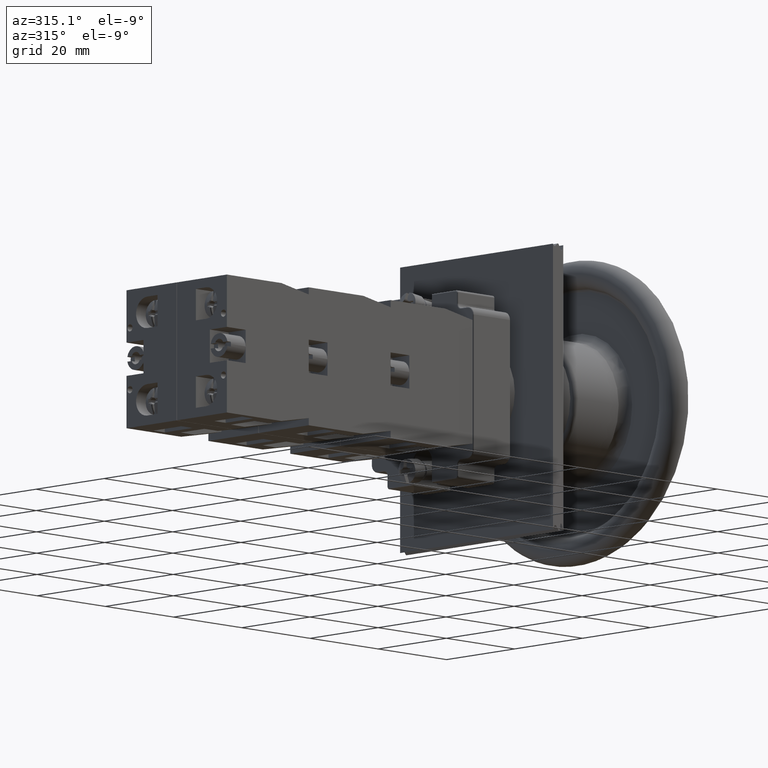
[diagram: clean part render]
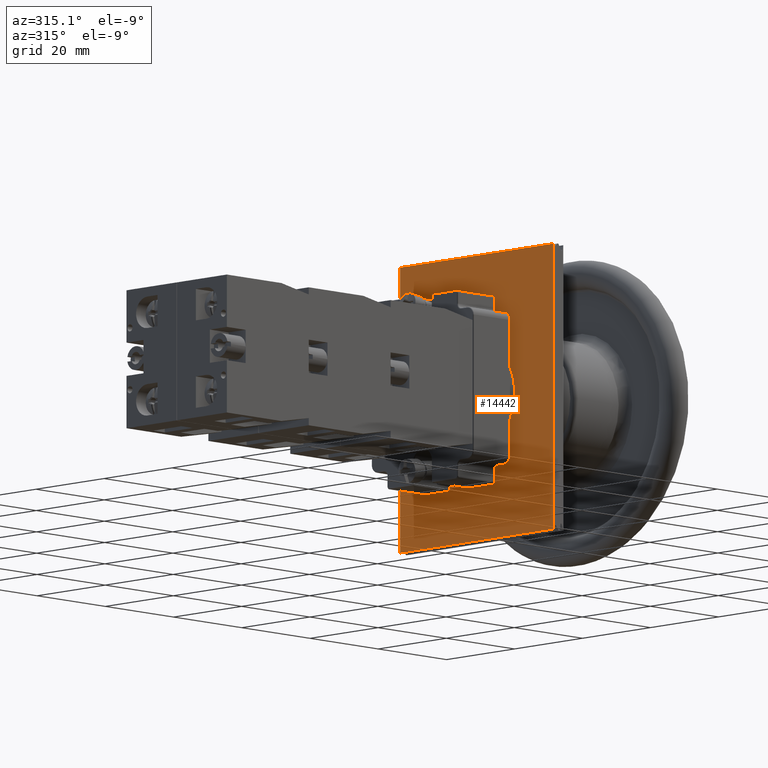
[diagram: same view with one face highlighted and labeled with its STEP entity id]
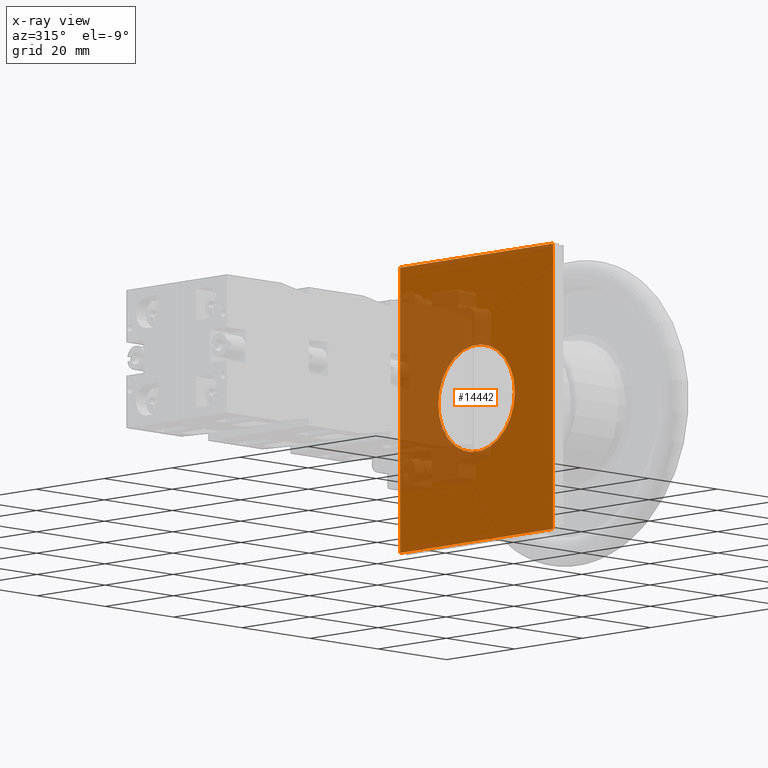
[diagram: x-ray of the same camera — body ghosted, the highlighted face saturated]
A machine part, auxiliary view. The second image highlights one B-rep face of the part: STEP entity #14442.
The next image is the same camera in x-ray: the body ghosted, the highlighted face saturated — about 33% of this face is hidden behind the body in this view.
In plain terms, the highlighted planar face has unit normal (-1, 0, 0).
Its self-contained STEP definition (entity closure, byte-faithful):
#14270=CARTESIAN_POINT('',(-15.704183619849179,-32.725398273954283,11.250000000000000));
#14271=VERTEX_POINT('',#14270);
#14272=CARTESIAN_POINT('',(-15.704183619849179,-32.725398273954283,22.500000000000000));
#14273=DIRECTION('',(1.0,0.0,0.0));
#14274=DIRECTION('',(0.0,0.0,1.0));
#14275=AXIS2_PLACEMENT_3D('',#14272,#14273,#14274);
#14276=CIRCLE('',#14275,11.250000000000000);
#14277=EDGE_CURVE('',#14271,#14271,#14276,.T.);
#14304=CARTESIAN_POINT('',(-15.704183619849179,-2.725398273954287,45.0));
#14305=VERTEX_POINT('',#14304);
#14324=CARTESIAN_POINT('',(-15.704183619849179,-2.725398273954287,0.0));
#14325=VERTEX_POINT('',#14324);
#14334=CARTESIAN_POINT('',(-15.704183619849179,-2.725398273954287,0.0));
#14335=DIRECTION('',(0.0,0.0,1.0));
#14336=VECTOR('',#14335,45.0);
#14337=LINE('',#14334,#14336);
#14338=EDGE_CURVE('',#14325,#14305,#14337,.T.);
#14388=CARTESIAN_POINT('',(-15.704183619849179,-62.725398273954283,45.0));
#14389=VERTEX_POINT('',#14388);
#14398=CARTESIAN_POINT('',(-15.704183619849179,-62.725398273954283,0.0));
#14399=VERTEX_POINT('',#14398);
#14400=CARTESIAN_POINT('',(-15.704183619849179,-62.725398273954283,0.0));
#14401=DIRECTION('',(0.0,0.0,1.0));
#14402=VECTOR('',#14401,45.0);
#14403=LINE('',#14400,#14402);
#14404=EDGE_CURVE('',#14399,#14389,#14403,.T.);
#14418=CARTESIAN_POINT('',(-15.704183619849179,-62.725398273954283,0.0));
#14419=DIRECTION('',(-1.0,0.0,0.0));
#14420=DIRECTION('',(0.0,0.0,1.0));
#14421=AXIS2_PLACEMENT_3D('',#14418,#14419,#14420);
#14422=PLANE('',#14421);
#14423=CARTESIAN_POINT('',(-15.704183619849179,-62.725398273954283,45.0));
#14424=DIRECTION('',(0.0,1.0,0.0));
#14425=VECTOR('',#14424,60.0);
#14426=LINE('',#14423,#14425);
#14427=EDGE_CURVE('',#14389,#14305,#14426,.T.);
#14428=ORIENTED_EDGE('',*,*,#14427,.T.);
#14429=ORIENTED_EDGE('',*,*,#14338,.F.);
#14430=CARTESIAN_POINT('',(-15.704183619849179,-2.725398273954287,0.0));
#14431=DIRECTION('',(0.0,-1.0,0.0));
#14432=VECTOR('',#14431,60.0);
#14433=LINE('',#14430,#14432);
#14434=EDGE_CURVE('',#14325,#14399,#14433,.T.);
#14435=ORIENTED_EDGE('',*,*,#14434,.T.);
#14436=ORIENTED_EDGE('',*,*,#14404,.T.);
#14437=EDGE_LOOP('',(#14428,#14429,#14435,#14436));
#14438=FACE_OUTER_BOUND('',#14437,.T.);
#14439=ORIENTED_EDGE('',*,*,#14277,.T.);
#14440=EDGE_LOOP('',(#14439));
#14441=FACE_BOUND('',#14440,.T.);
#14442=ADVANCED_FACE('',(#14438,#14441),#14422,.T.);